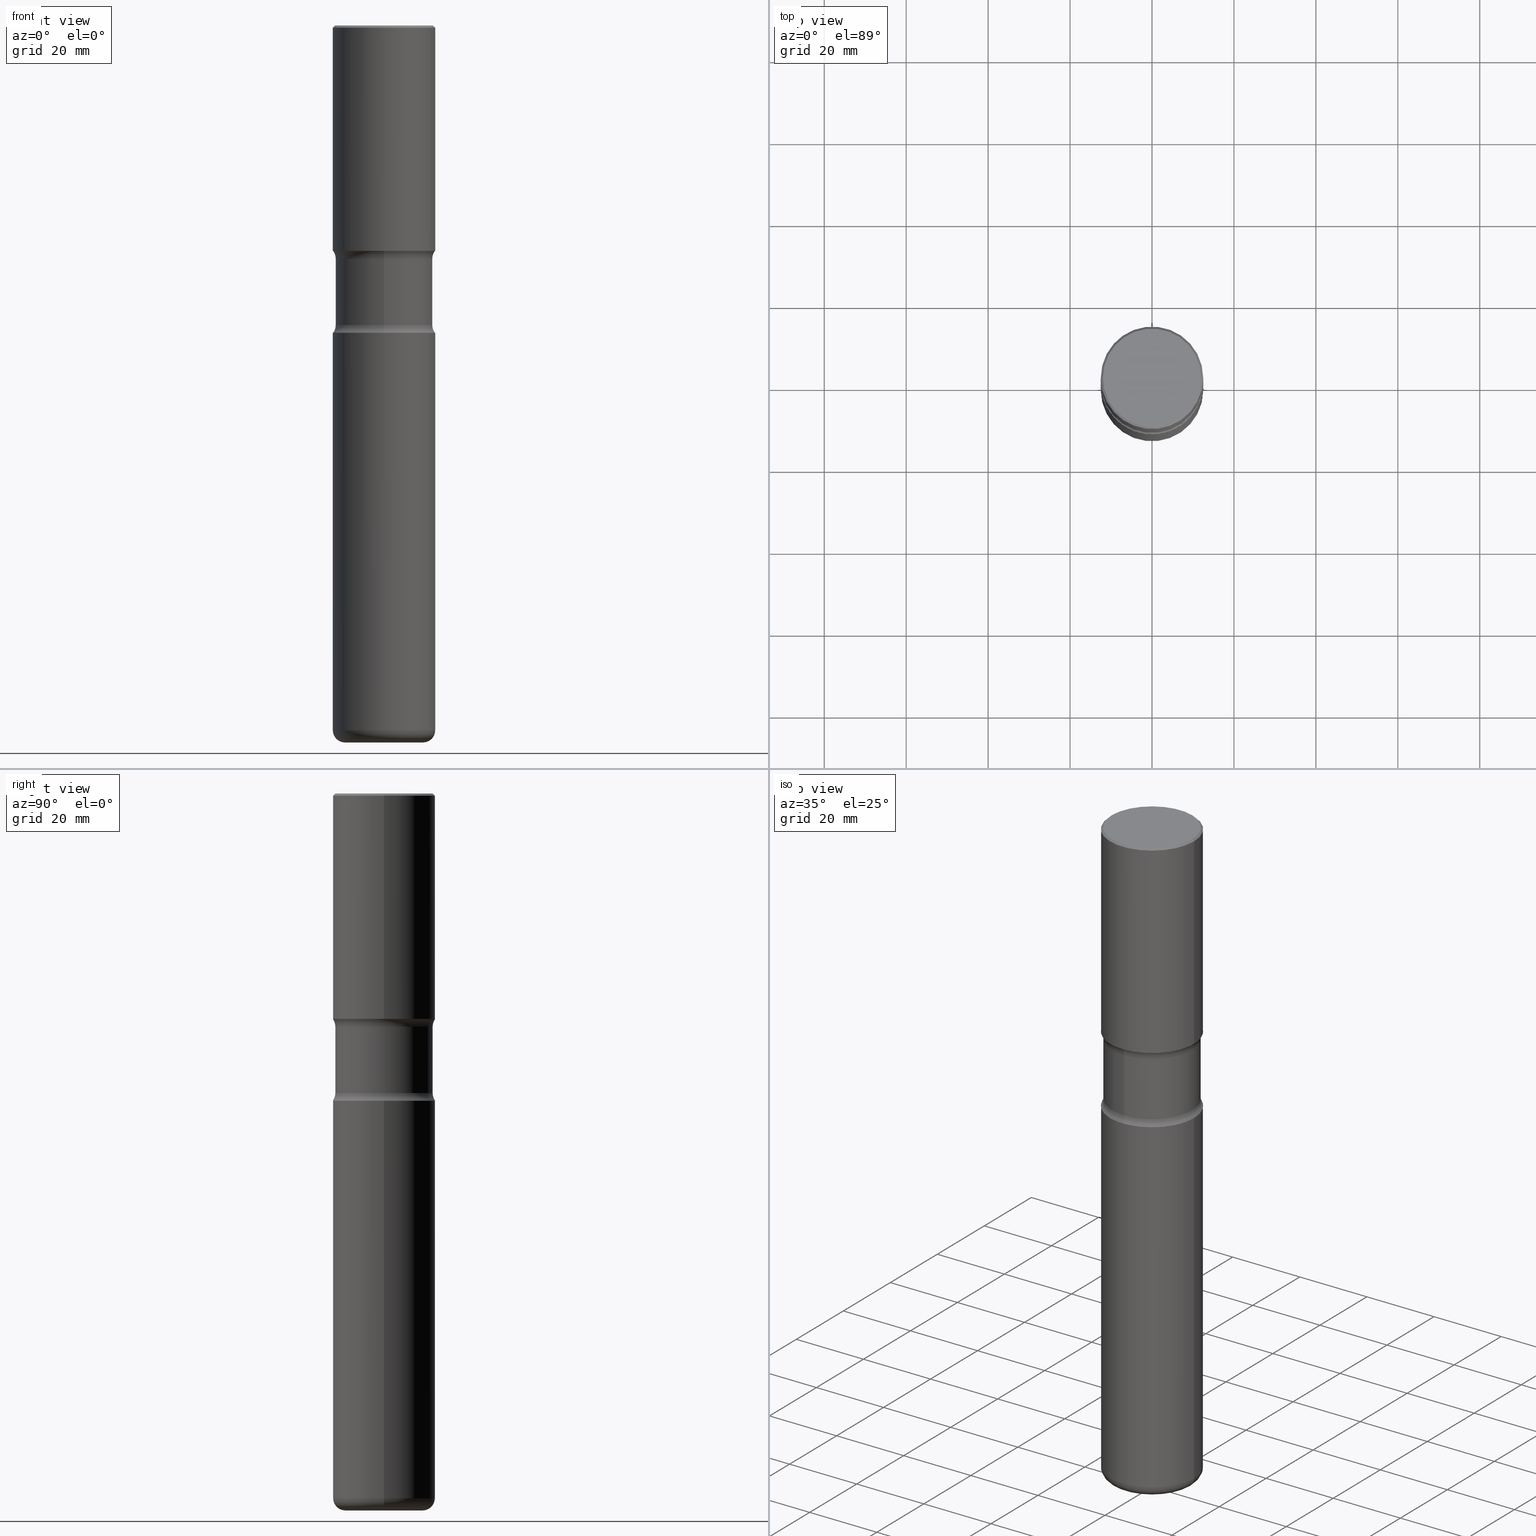
[diagram: canonical four-view strip — front | top / right | iso, engineering-drawing reading convention]
A machine part, canonical four-view strip (front | top / right | iso — engineering-drawing reading convention). The complete STEP part file that produces these views, byte-faithful:
ISO-10303-21;
HEADER;
FILE_DESCRIPTION (( 'STEP AP203' ),
    '1' );
FILE_NAME ('44766.STEP',
    '2024-03-02T02:59:02',
    ( '' ),
    ( '' ),
    'SwSTEP 2.0',
    'SolidWorks 2023',
    '' );
FILE_SCHEMA (( 'CONFIG_CONTROL_DESIGN' ));
ENDSEC;

DATA;
#1 = CARTESIAN_POINT ( 'NONE',  ( 1.656022566172450876E-28, -2.364361333037801448E-14, -6.771799999999999820 ) ) ;
#2 = EDGE_CURVE ( 'NONE', #377, #288, #232, .T. ) ;
#3 = DIRECTION ( 'NONE',  ( -2.445468806185136877E-29, 3.491481338843145188E-15, 1.000000000000000000 ) ) ;
#4 = CC_DESIGN_PERSON_AND_ORGANIZATION_ASSIGNMENT ( #112, #162, ( #527 ) ) ;
#5 = CARTESIAN_POINT ( 'NONE',  ( 5.295418152913296587E-29, -7.560453691130949000E-15, -2.165400000000000436 ) ) ;
#6 = DIRECTION ( 'NONE',  ( 1.000000000000000000, -6.982962677686264344E-15, 0.000000000000000000 ) ) ;
#7 = CIRCLE ( 'NONE', #465, 0.4921500000000002539 ) ;
#8 = DIRECTION ( 'NONE',  ( 6.860497997771532351E-15, 1.000000000000000000, 0.000000000000000000 ) ) ;
#9 = CARTESIAN_POINT ( 'NONE',  ( 0.000000000000000000, 0.000000000000000000, 0.000000000000000000 ) ) ;
#10 = ADVANCED_FACE ( 'NONE', ( #323 ), #143, .T. ) ;
#11 = EDGE_LOOP ( 'NONE', ( #376, #38 ) ) ;
#12 = DIRECTION ( 'NONE',  ( -2.445468806185136597E-29, 3.491481338843145583E-15, 1.000000000000000000 ) ) ;
#13 = DIRECTION ( 'NONE',  ( 1.000000000000000000, -6.982962677686266711E-15, 4.876176775795935232E-29 ) ) ;
#14 = CARTESIAN_POINT ( 'NONE',  ( -0.4921500000000004205, 3.366835455046435634E-15, -0.02000000000000013572 ) ) ;
#15 = DIRECTION ( 'NONE',  ( 2.481809406732894494E-29, -3.439439530480224420E-15, -1.000000000000000000 ) ) ;
#16 = ORIENTED_EDGE ( 'NONE', *, *, #177, .T. ) ;
#17 = DIRECTION ( 'NONE',  ( 1.000000000000000000, -6.860497997771530774E-15, 4.841436207964477879E-29 ) ) ;
#18 = CARTESIAN_POINT ( 'NONE',  ( 3.436665081823370324E-15, 0.4921499999999899844, -2.952800000000002090 ) ) ;
#19 = CARTESIAN_POINT ( 'NONE',  ( 5.295418152913296587E-29, -7.560453691130949000E-15, -2.165400000000000436 ) ) ;
#20 = ORIENTED_EDGE ( 'NONE', *, *, #523, .T. ) ;
#21 = CIRCLE ( 'NONE', #166, 0.4921500000000002539 ) ;
#22 = APPROVAL_PERSON_ORGANIZATION ( #456, #483, #71 ) ;
#23 = DIRECTION ( 'NONE',  ( 2.481809406732893933E-29, -3.439439530480224815E-15, -1.000000000000000000 ) ) ;
#24 = APPLICATION_CONTEXT ( 'configuration controlled 3d designs of mechanical parts and assemblies' ) ;
#25 = EDGE_LOOP ( 'NONE', ( #504, #20, #537, #525 ) ) ;
#26 = ADVANCED_FACE ( 'NONE', ( #281 ), #127, .T. ) ;
#27 = DATE_AND_TIME ( #347, #330 ) ;
#28 = DIRECTION ( 'NONE',  ( -2.445468806185136597E-29, 3.491481338843145583E-15, 1.000000000000000000 ) ) ;
#29 = CC_DESIGN_PERSON_AND_ORGANIZATION_ASSIGNMENT ( #467, #83, ( #272 ) ) ;
#30 = DIRECTION ( 'NONE',  ( 2.438088387897960049E-29, -3.491481338843145188E-15, -1.000000000000000000 ) ) ;
#31 =( CONVERSION_BASED_UNIT ( 'INCH', #551 ) LENGTH_UNIT ( ) NAMED_UNIT ( #150 ) );
#32 = ORIENTED_EDGE ( 'NONE', *, *, #300, .T. ) ;
#33 = CIRCLE ( 'NONE', #278, 0.1249999999999999584 ) ;
#34 = APPLICATION_PROTOCOL_DEFINITION ( 'international standard', 'config_control_design', 1994, #182 ) ;
#35 = EDGE_CURVE ( 'NONE', #390, #372, #318, .T. ) ;
#36 = EDGE_CURVE ( 'NONE', #201, #218, #362, .T. ) ;
#37 =( NAMED_UNIT ( * ) SI_UNIT ( $, .STERADIAN. ) SOLID_ANGLE_UNIT ( ) );
#38 = ORIENTED_EDGE ( 'NONE', *, *, #93, .F. ) ;
#39 = COORDINATED_UNIVERSAL_TIME_OFFSET ( 5, 0, .BEHIND. ) ;
#40 = ORIENTED_EDGE ( 'NONE', *, *, #489, .F. ) ;
#41 = VERTEX_POINT ( 'NONE', #160 ) ;
#42 = CLOSED_SHELL ( 'NONE', ( #481, #337, #431, #68, #534, #257, #199, #209 ) ) ;
#43 = CIRCLE ( 'NONE', #119, 0.4921500000000005870 ) ;
#44 = CYLINDRICAL_SURFACE ( 'NONE', #70, 0.4921500000000003094 ) ;
#45 = CC_DESIGN_APPROVAL ( #483, ( #272 ) ) ;
#46 = EDGE_CURVE ( 'NONE', #170, #391, #442, .T. ) ;
#47 = CARTESIAN_POINT ( 'NONE',  ( 4.137405386529183550E-15, 0.5924999999999900346, -2.878268949423749223 ) ) ;
#48 = DATE_AND_TIME ( #128, #54 ) ;
#49 = CARTESIAN_POINT ( 'NONE',  ( 3.264535051818384040E-15, 0.4674999999999921441, -2.239931050576255966 ) ) ;
#50 = FACE_OUTER_BOUND ( 'NONE', #25, .T. ) ;
#51 = AXIS2_PLACEMENT_3D ( 'NONE', #82, #63, #479 ) ;
#52 = ADVANCED_FACE ( 'NONE', ( #250 ), #122, .F. ) ;
#53 = ADVANCED_FACE ( 'NONE', ( #468 ), #84, .F. ) ;
#54 = LOCAL_TIME ( 21, 59, 2.000000000000000000, #253 ) ;
#55 = DIRECTION ( 'NONE',  ( 6.982962677686266711E-15, 1.000000000000000000, -3.439439530480224026E-15 ) ) ;
#56 = PRODUCT_DEFINITION ( 'UNKNOWN', '', #527, #454 ) ;
#57 = CARTESIAN_POINT ( 'NONE',  ( 7.220980290903472425E-29, -1.030964609733604011E-14, -2.952800000000000313 ) ) ;
#58 = ORIENTED_EDGE ( 'NONE', *, *, #518, .F. ) ;
#59 = EDGE_LOOP ( 'NONE', ( #124, #382, #485, #85 ) ) ;
#60 = DIRECTION ( 'NONE',  ( 6.982962677686265922E-15, 1.000000000000000000, -2.337410048054984397E-15 ) ) ;
#61 = AXIS2_PLACEMENT_3D ( 'NONE', #246, #415, #303 ) ;
#62 = AXIS2_PLACEMENT_3D ( 'NONE', #411, #324, #60 ) ;
#63 = DIRECTION ( 'NONE',  ( -1.000000000000000000, 6.982962677686265922E-15, -4.883557194083112340E-29 ) ) ;
#64 = DIRECTION ( 'NONE',  ( 2.481809406732894494E-29, -3.439439530480224420E-15, -1.000000000000000000 ) ) ;
#65 = DIRECTION ( 'NONE',  ( 6.982962677686265922E-15, 1.000000000000000000, -3.330506545156063496E-15 ) ) ;
#66 = PLANE ( 'NONE',  #370 ) ;
#67 = CARTESIAN_POINT ( 'NONE',  ( 5.295418152913296587E-29, -7.560453691130949000E-15, -2.165400000000000436 ) ) ;
#68 = ADVANCED_FACE ( 'NONE', ( #352 ), #222, .F. ) ;
#69 = AXIS2_PLACEMENT_3D ( 'NONE', #19, #541, #351 ) ;
#70 = AXIS2_PLACEMENT_3D ( 'NONE', #9, #239, #529 ) ;
#71 = APPROVAL_ROLE ( '' ) ;
#72 = ORIENTED_EDGE ( 'NONE', *, *, #109, .T. ) ;
#73 = ORIENTED_EDGE ( 'NONE', *, *, #386, .T. ) ;
#74 = APPLICATION_PROTOCOL_DEFINITION ( 'international standard', 'config_control_design', 1994, #24 ) ;
#75 = ORIENTED_EDGE ( 'NONE', *, *, #518, .T. ) ;
#76 = CARTESIAN_POINT ( 'NONE',  ( 0.000000000000000000, 0.000000000000000000, 0.000000000000000000 ) ) ;
#77 = ORIENTED_EDGE ( 'NONE', *, *, #266, .F. ) ;
#78 = DIRECTION ( 'NONE',  ( 2.481809406732894494E-29, -3.439439530480224420E-15, -1.000000000000000000 ) ) ;
#79 = ORIENTED_EDGE ( 'NONE', *, *, #185, .T. ) ;
#80 = AXIS2_PLACEMENT_3D ( 'NONE', #335, #107, #287 ) ;
#81 = APPROVAL_DATE_TIME ( #544, #327 ) ;
#82 = CARTESIAN_POINT ( 'NONE',  ( 4.137405386529168562E-15, 0.5924999999999922551, -2.239931050576256411 ) ) ;
#83 = PERSON_AND_ORGANIZATION_ROLE ( 'classification_officer' ) ;
#84 = PLANE ( 'NONE',  #385 ) ;
#85 = ORIENTED_EDGE ( 'NONE', *, *, #46, .T. ) ;
#86 = DIRECTION ( 'NONE',  ( -1.000000000000000000, 6.982962677686267499E-15, 0.000000000000000000 ) ) ;
#87 = EDGE_CURVE ( 'NONE', #333, #41, #105, .T. ) ;
#88 = ADVANCED_FACE ( 'NONE', ( #552 ), #556, .T. ) ;
#89 = SHAPE_DEFINITION_REPRESENTATION ( #472, #274 ) ;
#90 = ORGANIZATION ( 'UNSPECIFIED', 'UNSPECIFIED', '' ) ;
#91 = DIRECTION ( 'NONE',  ( 2.481809406732894494E-29, -3.439439530480224420E-15, -1.000000000000000000 ) ) ;
#92 = DIRECTION ( 'NONE',  ( -6.982962677686265133E-15, -1.000000000000000000, 0.000000000000000000 ) ) ;
#93 = EDGE_CURVE ( 'NONE', #218, #201, #421, .T. ) ;
#94 = CARTESIAN_POINT ( 'NONE',  ( 0.4921500000000005315, -3.436665081823299721E-15, 2.399810400207972125E-29 ) ) ;
#95 = CARTESIAN_POINT ( 'NONE',  ( 4.890937612370306439E-31, -6.982962677686338448E-17, -0.02000000000000013572 ) ) ;
#96 = AXIS2_PLACEMENT_3D ( 'NONE', #225, #334, #267 ) ;
#97 = CARTESIAN_POINT ( 'NONE',  ( 0.000000000000000000, 0.000000000000000000, 0.000000000000000000 ) ) ;
#98 = DIRECTION ( 'NONE',  ( 2.481809406732894494E-29, -3.439439530480224420E-15, -1.000000000000000000 ) ) ;
#99 = CARTESIAN_POINT ( 'NONE',  ( 7.036008428489641815E-29, -1.005330105573585586E-14, -2.878268949423747003 ) ) ;
#100 = CYLINDRICAL_SURFACE ( 'NONE', #96, 0.4675000000000000266 ) ;
#101 = ORIENTED_EDGE ( 'NONE', *, *, #2, .T. ) ;
#102 = EDGE_CURVE ( 'NONE', #401, #497, #141, .T. ) ;
#103 = CARTESIAN_POINT ( 'NONE',  ( 7.036008428489641815E-29, -1.005330105573585586E-14, -2.878268949423747003 ) ) ;
#104 = VERTEX_POINT ( 'NONE', #123 ) ;
#105 = CIRCLE ( 'NONE', #392, 0.4921500000000003650 ) ;
#106 = APPROVAL_PERSON_ORGANIZATION ( #265, #305, #419 ) ;
#107 = DIRECTION ( 'NONE',  ( 2.481809406732894494E-29, -3.439439530480224420E-15, -1.000000000000000000 ) ) ;
#108 = EDGE_CURVE ( 'NONE', #497, #333, #346, .T. ) ;
#109 = EDGE_CURVE ( 'NONE', #221, #401, #538, .T. ) ;
#110 = EDGE_LOOP ( 'NONE', ( #75, #461, #498, #113 ) ) ;
#111 = VERTEX_POINT ( 'NONE', #195 ) ;
#112 = PERSON_AND_ORGANIZATION ( #260, #90 ) ;
#113 = ORIENTED_EDGE ( 'NONE', *, *, #2, .F. ) ;
#114 = CC_DESIGN_DATE_AND_TIME_ASSIGNMENT ( #462, #207, ( #56 ) ) ;
#115 = ORIENTED_EDGE ( 'NONE', *, *, #36, .T. ) ;
#116 = VECTOR ( 'NONE', #148, 39.37007874015748143 ) ;
#117 = ORIENTED_EDGE ( 'NONE', *, *, #108, .F. ) ;
#118 = CLOSED_SHELL ( 'NONE', ( #414, #448, #528, #449, #88, #156 ) ) ;
#119 = AXIS2_PLACEMENT_3D ( 'NONE', #546, #459, #298 ) ;
#120 =( NAMED_UNIT ( * ) PLANE_ANGLE_UNIT ( ) SI_UNIT ( $, .RADIAN. ) );
#121 = EDGE_LOOP ( 'NONE', ( #163, #409, #240, #211 ) ) ;
#122 = PLANE ( 'NONE',  #69 ) ;
#123 = CARTESIAN_POINT ( 'NONE',  ( -3.291838451780672198E-15, -0.4675000000000078537, -2.239931050576252414 ) ) ;
#124 = ORIENTED_EDGE ( 'NONE', *, *, #244, .F. ) ;
#125 = AXIS2_PLACEMENT_3D ( 'NONE', #345, #78, #65 ) ;
#126 = PERSON_AND_ORGANIZATION_ROLE ( 'design_supplier' ) ;
#127 = CYLINDRICAL_SURFACE ( 'NONE', #61, 0.4921500000000005315 ) ;
#128 = CALENDAR_DATE ( 2024, 1, 3 ) ;
#129 = DIRECTION ( 'NONE',  ( -0.7071067811865472397, 2.468850131082253905E-15, -0.7071067811865477948 ) ) ;
#130 = DIRECTION ( 'NONE',  ( -2.445468806185136597E-29, 3.491481338843145583E-15, 1.000000000000000000 ) ) ;
#131 = DIRECTION ( 'NONE',  ( -1.000000000000000000, 6.982962677686265922E-15, -4.876176775795935793E-29 ) ) ;
#132 = AXIS2_PLACEMENT_3D ( 'NONE', #438, #91, #432 ) ;
#133 = AXIS2_PLACEMENT_3D ( 'NONE', #57, #15, #484 ) ;
#134 = PLANE ( 'NONE',  #188 ) ;
#135 = DIRECTION ( 'NONE',  ( 6.982962677686265922E-15, 1.000000000000000000, -3.330506545156063496E-15 ) ) ;
#136 = APPROVAL_DATE_TIME ( #48, #483 ) ;
#137 = CARTESIAN_POINT ( 'NONE',  ( -0.4921500000000003094, -2.014667725633467764E-14, -6.771799999999999820 ) ) ;
#138 = MANIFOLD_SOLID_BREP ( 'Body-Move/Copy2[1]', #118 ) ;
#139 = DIRECTION ( 'NONE',  ( 0.7071067811865472397, -7.319954787623254468E-15, -0.7071067811865477948 ) ) ;
#140 = CARTESIAN_POINT ( 'NONE',  ( 3.297005828269572336E-15, 0.4721500000000002917, -1.644234401644691855E-15 ) ) ;
#141 = CIRCLE ( 'NONE', #309, 0.1180000000000000770 ) ;
#142 = CC_DESIGN_APPROVAL ( #305, ( #56 ) ) ;
#143 = CYLINDRICAL_SURFACE ( 'NONE', #237, 0.4921500000000005315 ) ;
#144 = FACE_OUTER_BOUND ( 'NONE', #121, .T. ) ;
#145 = MANIFOLD_SOLID_BREP ( 'Body-Move/Copy2[4]', #42 ) ;
#146 = DIRECTION ( 'NONE',  ( -1.000000000000000000, 6.982962677686265922E-15, -4.876176775795935793E-29 ) ) ;
#147 = ORIENTED_EDGE ( 'NONE', *, *, #244, .T. ) ;
#148 = DIRECTION ( 'NONE',  ( 2.481809406732894774E-29, -3.439439530480224815E-15, -1.000000000000000000 ) ) ;
#149 = CC_DESIGN_PERSON_AND_ORGANIZATION_ASSIGNMENT ( #297, #424, ( #56 ) ) ;
#150 = DIMENSIONAL_EXPONENTS ( 1.000000000000000000, 0.000000000000000000, 0.000000000000000000, 0.000000000000000000, 0.000000000000000000, 0.000000000000000000, 0.000000000000000000 ) ;
#151 = DIRECTION ( 'NONE',  ( 2.438088387897960049E-29, -3.491481338843145188E-15, -1.000000000000000000 ) ) ;
#152 = ORIENTED_EDGE ( 'NONE', *, *, #365, .T. ) ;
#153 = CONICAL_SURFACE ( 'NONE', #238, 0.4921500000000004205, 0.7853981633974479459 ) ;
#154 = AXIS2_PLACEMENT_3D ( 'NONE', #197, #290, #248 ) ;
#155 = EDGE_CURVE ( 'NONE', #104, #218, #477, .T. ) ;
#156 = ADVANCED_FACE ( 'NONE', ( #531 ), #441, .F. ) ;
#157 = DIRECTION ( 'NONE',  ( 1.000000000000000000, -6.982962677686264344E-15, 0.000000000000000000 ) ) ;
#158 = ORIENTED_EDGE ( 'NONE', *, *, #245, .T. ) ;
#159 = ORIENTED_EDGE ( 'NONE', *, *, #210, .T. ) ;
#160 = CARTESIAN_POINT ( 'NONE',  ( -0.4921500000000004205, -1.347969363981368966E-14, -2.952800000000000313 ) ) ;
#161 = EDGE_LOOP ( 'NONE', ( #509, #72, #412, #515 ) ) ;
#162 = PERSON_AND_ORGANIZATION_ROLE ( 'creator' ) ;
#163 = ORIENTED_EDGE ( 'NONE', *, *, #523, .F. ) ;
#164 = ORIENTED_EDGE ( 'NONE', *, *, #365, .F. ) ;
#165 = DIRECTION ( 'NONE',  ( -6.982962677686266711E-15, -1.000000000000000000, 3.491481338843145583E-15 ) ) ;
#166 = AXIS2_PLACEMENT_3D ( 'NONE', #1, #517, #395 ) ;
#167 = DIRECTION ( 'NONE',  ( 1.000000000000000000, -6.982962677686267499E-15, 4.876006802227156250E-29 ) ) ;
#168 = DIRECTION ( 'NONE',  ( 0.000000000000000000, 0.000000000000000000, 1.000000000000000000 ) ) ;
#169 = CALENDAR_DATE ( 2024, 1, 3 ) ;
#170 = VERTEX_POINT ( 'NONE', #14 ) ;
#171 = AXIS2_PLACEMENT_3D ( 'NONE', #316, #12, #6 ) ;
#172 = EDGE_CURVE ( 'NONE', #359, #111, #43, .T. ) ;
#173 = EDGE_LOOP ( 'NONE', ( #73, #16, #493, #117 ) ) ;
#174 = CARTESIAN_POINT ( 'NONE',  ( -3.376394089603208169E-15, -0.4921500000000079145, -2.165399999999999103 ) ) ;
#175 = CARTESIAN_POINT ( 'NONE',  ( -0.4921500000000004205, 3.366835455046435634E-15, -0.02000000000000013572 ) ) ;
#176 = DIRECTION ( 'NONE',  ( 2.481809406732894494E-29, -3.439439530480224420E-15, -1.000000000000000000 ) ) ;
#177 = EDGE_CURVE ( 'NONE', #404, #41, #510, .T. ) ;
#178 = VECTOR ( 'NONE', #312, 39.37007874015748143 ) ;
#179 = AXIS2_PLACEMENT_3D ( 'NONE', #375, #445, #291 ) ;
#180 = CARTESIAN_POINT ( 'NONE',  ( 7.038716931627038310E-29, -1.004942232508467898E-14, -2.878268949423747003 ) ) ;
#181 = CARTESIAN_POINT ( 'NONE',  ( 0.4921500000000004205, -3.446223716380125899E-15, -0.02000000000000013572 ) ) ;
#182 = APPLICATION_CONTEXT ( 'configuration controlled 3d designs of mechanical parts and assemblies' ) ;
#183 = CARTESIAN_POINT ( 'NONE',  ( 4.890937612370306439E-31, -6.982962677686338448E-17, -0.02000000000000013572 ) ) ;
#184 = FACE_OUTER_BOUND ( 'NONE', #173, .T. ) ;
#185 = EDGE_CURVE ( 'NONE', #377, #201, #378, .T. ) ;
#186 = ADVANCED_FACE ( 'NONE', ( #235 ), #487, .T. ) ;
#187 = DIRECTION ( 'NONE',  ( 6.982962677686266711E-15, 1.000000000000000000, -3.439439530480224026E-15 ) ) ;
#188 = AXIS2_PLACEMENT_3D ( 'NONE', #308, #396, #473 ) ;
#189 = DIRECTION ( 'NONE',  ( 1.000000000000000000, -6.982962677686268288E-15, 4.883557194083113462E-29 ) ) ;
#190 = VECTOR ( 'NONE', #139, 39.37007874015748143 ) ;
#191 = ORIENTED_EDGE ( 'NONE', *, *, #35, .T. ) ;
#192 = CC_DESIGN_SECURITY_CLASSIFICATION ( #272, ( #527 ) ) ;
#193 = DIRECTION ( 'NONE',  ( 2.481809406732894494E-29, -3.439439530480224420E-15, -1.000000000000000000 ) ) ;
#194 = ORIENTED_EDGE ( 'NONE', *, *, #300, .F. ) ;
#195 = CARTESIAN_POINT ( 'NONE',  ( 0.4921500000000005870, -1.099711877295425109E-14, -2.165400000000000436 ) ) ;
#196 = CARTESIAN_POINT ( 'NONE',  ( 7.220980290903472425E-29, -1.030964609733604011E-14, -2.952800000000000313 ) ) ;
#197 = CARTESIAN_POINT ( 'NONE',  ( -0.3741500000000003157, -2.098511768453159818E-14, -6.771799999999999820 ) ) ;
#198 = ORIENTED_EDGE ( 'NONE', *, *, #545, .T. ) ;
#199 = ADVANCED_FACE ( 'NONE', ( #144 ), #302, .F. ) ;
#200 = FACE_OUTER_BOUND ( 'NONE', #11, .T. ) ;
#201 = VERTEX_POINT ( 'NONE', #277 ) ;
#202 = AXIS2_PLACEMENT_3D ( 'NONE', #471, #557, #276 ) ;
#203 = AXIS2_PLACEMENT_3D ( 'NONE', #532, #539, #157 ) ;
#204 = EDGE_LOOP ( 'NONE', ( #254, #32 ) ) ;
#205 = DIRECTION ( 'NONE',  ( 6.982962677686265133E-15, 1.000000000000000000, -3.439439530480224026E-15 ) ) ;
#206 = EDGE_LOOP ( 'NONE', ( #296, #158, #295, #549 ) ) ;
#207 = DATE_TIME_ROLE ( 'creation_date' ) ;
#208 = ORIENTED_EDGE ( 'NONE', *, *, #469, .F. ) ;
#209 = ADVANCED_FACE ( 'NONE', ( #474 ), #100, .T. ) ;
#210 = EDGE_CURVE ( 'NONE', #404, #497, #21, .T. ) ;
#211 = ORIENTED_EDGE ( 'NONE', *, *, #550, .T. ) ;
#212 = VECTOR ( 'NONE', #367, 39.37007874015748143 ) ;
#213 = AXIS2_PLACEMENT_3D ( 'NONE', #99, #282, #439 ) ;
#214 = MECHANICAL_CONTEXT ( 'NONE', #182, 'mechanical' ) ;
#215 = DIRECTION ( 'NONE',  ( 2.481809406732894494E-29, -3.439439530480224420E-15, -1.000000000000000000 ) ) ;
#216 = ORIENTED_EDGE ( 'NONE', *, *, #155, .F. ) ;
#217 = PERSON_AND_ORGANIZATION ( #260, #90 ) ;
#218 = VERTEX_POINT ( 'NONE', #174 ) ;
#219 = EDGE_CURVE ( 'NONE', #530, #288, #33, .T. ) ;
#220 = APPROVAL_STATUS ( 'not_yet_approved' ) ;
#221 = VERTEX_POINT ( 'NONE', #358 ) ;
#222 = TOROIDAL_SURFACE ( 'NONE', #416, 0.5925000000000001377, 0.1250000000000002498 ) ;
#223 = AXIS2_PLACEMENT_3D ( 'NONE', #76, #168, #261 ) ;
#224 = CARTESIAN_POINT ( 'NONE',  ( 1.656022566172450876E-28, -2.364361333037801448E-14, -6.771799999999999820 ) ) ;
#225 = CARTESIAN_POINT ( 'NONE',  ( 1.699186392521087599E-28, -2.385071952883668462E-14, -6.889800000000000146 ) ) ;
#226 = DIRECTION ( 'NONE',  ( -2.445468806185136877E-29, 3.491481338843145188E-15, 1.000000000000000000 ) ) ;
#227 = DIRECTION ( 'NONE',  ( 2.445468806185136597E-29, -3.491481338843145583E-15, -1.000000000000000000 ) ) ;
#228 = CARTESIAN_POINT ( 'NONE',  ( 0.000000000000000000, 0.000000000000000000, 0.000000000000000000 ) ) ;
#229 = AXIS2_PLACEMENT_3D ( 'NONE', #433, #176, #135 ) ;
#230 = CC_DESIGN_APPROVAL ( #327, ( #527 ) ) ;
#231 = LINE ( 'NONE', #94, #500 ) ;
#232 = LINE ( 'NONE', #402, #116 ) ;
#233 = DIRECTION ( 'NONE',  ( 1.000000000000000000, -6.982962677686267499E-15, 0.000000000000000000 ) ) ;
#234 = DIRECTION ( 'NONE',  ( -1.000000000000000000, 6.982962677686267499E-15, 0.000000000000000000 ) ) ;
#235 = FACE_OUTER_BOUND ( 'NONE', #59, .T. ) ;
#236 = DIRECTION ( 'NONE',  ( -2.445468806185136597E-29, 3.491481338843145583E-15, 1.000000000000000000 ) ) ;
#237 = AXIS2_PLACEMENT_3D ( 'NONE', #97, #241, #13 ) ;
#238 = AXIS2_PLACEMENT_3D ( 'NONE', #476, #227, #86 ) ;
#239 = DIRECTION ( 'NONE',  ( -2.445468806185136597E-29, 3.491481338843145583E-15, 1.000000000000000000 ) ) ;
#240 = ORIENTED_EDGE ( 'NONE', *, *, #219, .T. ) ;
#241 = DIRECTION ( 'NONE',  ( -2.445468806185136597E-29, 3.491481338843145583E-15, 1.000000000000000000 ) ) ;
#242 = EDGE_LOOP ( 'NONE', ( #446, #147, #540, #77 ) ) ;
#243 = CARTESIAN_POINT ( 'NONE',  ( 0.4921500000000003094, -2.708027841220131499E-14, -6.771799999999999820 ) ) ;
#244 = EDGE_CURVE ( 'NONE', #372, #391, #403, .T. ) ;
#245 = EDGE_CURVE ( 'NONE', #359, #170, #366, .T. ) ;
#246 = CARTESIAN_POINT ( 'NONE',  ( 0.000000000000000000, 0.000000000000000000, 0.000000000000000000 ) ) ;
#247 = ORIENTED_EDGE ( 'NONE', *, *, #102, .F. ) ;
#248 = DIRECTION ( 'NONE',  ( -1.000000000000000000, 7.105427357601009747E-15, 0.000000000000000000 ) ) ;
#249 = EDGE_LOOP ( 'NONE', ( #40, #256 ) ) ;
#250 = FACE_OUTER_BOUND ( 'NONE', #317, .T. ) ;
#251 = DIRECTION ( 'NONE',  ( -2.445468806185136597E-29, 3.491481338843145583E-15, 1.000000000000000000 ) ) ;
#252 = TOROIDAL_SURFACE ( 'NONE', #264, 0.3741500000000003157, 0.1180000000000000770 ) ;
#253 = COORDINATED_UNIVERSAL_TIME_OFFSET ( 5, 0, .BEHIND. ) ;
#254 = ORIENTED_EDGE ( 'NONE', *, *, #87, .T. ) ;
#255 = DIRECTION ( 'NONE',  ( -2.445468806185136597E-29, 3.491481338843145583E-15, 1.000000000000000000 ) ) ;
#256 = ORIENTED_EDGE ( 'NONE', *, *, #109, .F. ) ;
#257 = ADVANCED_FACE ( 'NONE', ( #519 ), #134, .F. ) ;
#258 = PERSON_AND_ORGANIZATION ( #260, #90 ) ;
#259 = ORIENTED_EDGE ( 'NONE', *, *, #155, .T. ) ;
#260 = PERSON ( 'UNSPECIFIED', 'UNSPECIFIED', 'UNSPECIFIED', ('UNSPECIFIED'), ('UNSPECIFIED'), ('UNSPECIFIED') ) ;
#261 = DIRECTION ( 'NONE',  ( 1.000000000000000000, 0.000000000000000000, 0.000000000000000000 ) ) ;
#262 = CARTESIAN_POINT ( 'NONE',  ( 0.3741500000000003157, -2.625628881623433059E-14, -6.771799999999999820 ) ) ;
#263 = VECTOR ( 'NONE', #129, 39.37007874015748143 ) ;
#264 = AXIS2_PLACEMENT_3D ( 'NONE', #371, #236, #189 ) ;
#265 = PERSON_AND_ORGANIZATION ( #260, #90 ) ;
#266 = EDGE_CURVE ( 'NONE', #390, #170, #522, .T. ) ;
#267 = DIRECTION ( 'NONE',  ( 6.982962677686265922E-15, 1.000000000000000000, -2.337410048054984397E-15 ) ) ;
#268 = COORDINATED_UNIVERSAL_TIME_OFFSET ( 5, 0, .BEHIND. ) ;
#269 = CARTESIAN_POINT ( 'NONE',  ( 7.038716931627038310E-29, -1.004942232508467898E-14, -2.878268949423747003 ) ) ;
#270 = LINE ( 'NONE', #470, #212 ) ;
#271 = CIRCLE ( 'NONE', #132, 0.4675000000000000266 ) ;
#272 = SECURITY_CLASSIFICATION ( '', '', #304 ) ;
#273 = CARTESIAN_POINT ( 'NONE',  ( 3.264535051818399817E-15, 0.4674999999999899791, -2.878268949423748779 ) ) ;
#274 = ADVANCED_BREP_SHAPE_REPRESENTATION ( '44766', ( #138, #344, #145, #223 ), #503 ) ;
#275 = CARTESIAN_POINT ( 'NONE',  ( -3.376394089603189631E-15, -0.4921500000000106345, -2.952799999999998537 ) ) ;
#276 = DIRECTION ( 'NONE',  ( 1.000000000000000000, -6.982962677686265133E-15, 0.000000000000000000 ) ) ;
#277 = CARTESIAN_POINT ( 'NONE',  ( 3.436665081823350997E-15, 0.4921499999999927044, -2.165400000000002656 ) ) ;
#278 = AXIS2_PLACEMENT_3D ( 'NONE', #47, #364, #92 ) ;
#279 = AXIS2_PLACEMENT_3D ( 'NONE', #5, #251, #417 ) ;
#280 = DIRECTION ( 'NONE',  ( -2.445468806185136597E-29, 3.491481338843145583E-15, 1.000000000000000000 ) ) ;
#281 = FACE_OUTER_BOUND ( 'NONE', #425, .T. ) ;
#282 = DIRECTION ( 'NONE',  ( 2.481809406732894494E-29, -3.439439530480224420E-15, -1.000000000000000000 ) ) ;
#283 = CARTESIAN_POINT ( 'NONE',  ( 1.656022566172450876E-28, -2.364361333037801448E-14, -6.771799999999999820 ) ) ;
#284 = ORIENTED_EDGE ( 'NONE', *, *, #506, .T. ) ;
#285 = EDGE_CURVE ( 'NONE', #111, #391, #231, .T. ) ;
#286 = EDGE_CURVE ( 'NONE', #104, #435, #270, .T. ) ;
#287 = DIRECTION ( 'NONE',  ( 6.982962677686265922E-15, 1.000000000000000000, -3.506115072082476793E-15 ) ) ;
#288 = VERTEX_POINT ( 'NONE', #273 ) ;
#289 = PRODUCT_RELATED_PRODUCT_CATEGORY ( 'detail', '', ( #452 ) ) ;
#290 = DIRECTION ( 'NONE',  ( 7.105427357601001859E-15, 1.000000000000000000, -3.491481338843145583E-15 ) ) ;
#291 = DIRECTION ( 'NONE',  ( 6.860497997771528407E-15, 1.000000000000000000, 0.000000000000000000 ) ) ;
#292 = ORIENTED_EDGE ( 'NONE', *, *, #286, .F. ) ;
#293 = AXIS2_PLACEMENT_3D ( 'NONE', #196, #535, #410 ) ;
#294 = ORIENTED_EDGE ( 'NONE', *, *, #172, .F. ) ;
#295 = ORIENTED_EDGE ( 'NONE', *, *, #407, .F. ) ;
#296 = ORIENTED_EDGE ( 'NONE', *, *, #469, .T. ) ;
#297 = PERSON_AND_ORGANIZATION ( #260, #90 ) ;
#298 = DIRECTION ( 'NONE',  ( 1.000000000000000000, -6.982962677686267499E-15, 0.000000000000000000 ) ) ;
#299 = UNCERTAINTY_MEASURE_WITH_UNIT (LENGTH_MEASURE( 1.000000000000000082E-05 ), #31, 'distance_accuracy_value', 'NONE');
#300 = EDGE_CURVE ( 'NONE', #41, #333, #341, .T. ) ;
#301 = DIRECTION ( 'NONE',  ( 1.000000000000000000, -6.982962677686265133E-15, 0.000000000000000000 ) ) ;
#302 = TOROIDAL_SURFACE ( 'NONE', #369, 0.5925000000000000266, 0.1249999999999999306 ) ;
#303 = DIRECTION ( 'NONE',  ( 1.000000000000000000, -6.982962677686266711E-15, 4.876176775795935232E-29 ) ) ;
#304 = SECURITY_CLASSIFICATION_LEVEL ( 'unclassified' ) ;
#305 = APPROVAL ( #389, 'UNSPECIFIED' ) ;
#306 = VERTEX_POINT ( 'NONE', #275 ) ;
#307 = DIRECTION ( 'NONE',  ( 2.481809406732894494E-29, -3.439439530480224420E-15, -1.000000000000000000 ) ) ;
#308 = CARTESIAN_POINT ( 'NONE',  ( 7.220980290903472425E-29, -1.030964609733604011E-14, -2.952800000000000313 ) ) ;
#309 = AXIS2_PLACEMENT_3D ( 'NONE', #262, #165, #505 ) ;
#310 = AXIS2_PLACEMENT_3D ( 'NONE', #283, #320, #440 ) ;
#311 = CARTESIAN_POINT ( 'NONE',  ( -2.087702828670439639E-46, 2.980686340760894400E-32, 8.537024980200822558E-18 ) ) ;
#312 = DIRECTION ( 'NONE',  ( -2.445468806185136877E-29, 3.491481338843145188E-15, 1.000000000000000000 ) ) ;
#313 = CC_DESIGN_DATE_AND_TIME_ASSIGNMENT ( #426, #502, ( #272 ) ) ;
#314 = CARTESIAN_POINT ( 'NONE',  ( 0.4921500000000003650, -1.374631117915933746E-14, -2.952800000000000313 ) ) ;
#315 = DIRECTION ( 'NONE',  ( 1.000000000000000000, -6.982962677686270655E-15, 0.000000000000000000 ) ) ;
#316 = CARTESIAN_POINT ( 'NONE',  ( 1.684879098085435385E-28, -2.405560812836150510E-14, -6.889800000000000146 ) ) ;
#317 = EDGE_LOOP ( 'NONE', ( #208, #294 ) ) ;
#318 = CIRCLE ( 'NONE', #526, 0.4721500000000002917 ) ;
#319 = AXIS2_PLACEMENT_3D ( 'NONE', #408, #193, #205 ) ;
#320 = DIRECTION ( 'NONE',  ( -2.445468806185136597E-29, 3.491481338843145583E-15, 1.000000000000000000 ) ) ;
#321 = CARTESIAN_POINT ( 'NONE',  ( -3.291838451780654843E-15, -0.4675000000000100187, -2.878268949423745227 ) ) ;
#322 = EDGE_CURVE ( 'NONE', #372, #390, #513, .T. ) ;
#323 = FACE_OUTER_BOUND ( 'NONE', #206, .T. ) ;
#324 = DIRECTION ( 'NONE',  ( 2.481809406732894494E-29, -3.439439530480224420E-15, -1.000000000000000000 ) ) ;
#325 = EDGE_LOOP ( 'NONE', ( #164, #259, #533, #543 ) ) ;
#326 = CARTESIAN_POINT ( 'NONE',  ( -4.064845063679578461E-15, -0.5925000000000081313, -2.239931050576252414 ) ) ;
#327 = APPROVAL ( #220, 'UNSPECIFIED' ) ;
#328 = CLOSED_SHELL ( 'NONE', ( #10, #394, #186, #53, #52, #26 ) ) ;
#329 = VECTOR ( 'NONE', #418, 39.37007874015748143 ) ;
#330 = LOCAL_TIME ( 21, 59, 2.000000000000000000, #39 ) ;
#331 = ORIENTED_EDGE ( 'NONE', *, *, #245, .F. ) ;
#332 = CARTESIAN_POINT ( 'NONE',  ( 4.890937612370306439E-31, -6.982962677686338448E-17, -0.02000000000000013572 ) ) ;
#333 = VERTEX_POINT ( 'NONE', #314 ) ;
#334 = DIRECTION ( 'NONE',  ( 2.481809406732894494E-29, -3.439439530480224420E-15, -1.000000000000000000 ) ) ;
#335 = CARTESIAN_POINT ( 'NONE',  ( 5.451775426455823667E-29, -7.857776452636100502E-15, -2.239931050576254190 ) ) ;
#336 = ORIENTED_EDGE ( 'NONE', *, *, #488, .F. ) ;
#337 = ADVANCED_FACE ( 'NONE', ( #50 ), #455, .F. ) ;
#338 = EDGE_LOOP ( 'NONE', ( #339, #198 ) ) ;
#339 = ORIENTED_EDGE ( 'NONE', *, *, #511, .T. ) ;
#340 = APPROVAL_STATUS ( 'not_yet_approved' ) ;
#341 = CIRCLE ( 'NONE', #202, 0.4921500000000003650 ) ;
#342 = CC_DESIGN_PERSON_AND_ORGANIZATION_ASSIGNMENT ( #217, #126, ( #527 ) ) ;
#343 = LOCAL_TIME ( 21, 59, 2.000000000000000000, #268 ) ;
#344 = MANIFOLD_SOLID_BREP ( 'Body-Move/Copy2[2]', #328 ) ;
#345 = CARTESIAN_POINT ( 'NONE',  ( 5.266803564041991936E-29, -7.601431411035914674E-15, -2.165400000000000880 ) ) ;
#346 = LINE ( 'NONE', #507, #178 ) ;
#347 = CALENDAR_DATE ( 2024, 1, 3 ) ;
#348 = APPROVAL_ROLE ( '' ) ;
#349 = DIRECTION ( 'NONE',  ( 6.982962677686265133E-15, 1.000000000000000000, -3.439439530480224026E-15 ) ) ;
#350 = CARTESIAN_POINT ( 'NONE',  ( -0.4921500000000003094, 3.496936074043335263E-15, -2.420853904668953471E-29 ) ) ;
#351 = DIRECTION ( 'NONE',  ( 1.000000000000000000, -6.982962677686265922E-15, 4.876176775795935793E-29 ) ) ;
#352 = FACE_OUTER_BOUND ( 'NONE', #384, .T. ) ;
#353 = COORDINATED_UNIVERSAL_TIME_OFFSET ( 5, 0, .BEHIND. ) ;
#354 = ORIENTED_EDGE ( 'NONE', *, *, #172, .T. ) ;
#355 = AXIS2_PLACEMENT_3D ( 'NONE', #311, #559, #360 ) ;
#356 = CIRCLE ( 'NONE', #179, 0.1249999999999999584 ) ;
#357 = CARTESIAN_POINT ( 'NONE',  ( 5.429990530737558152E-29, -7.888973663223921688E-15, -2.239931050576254634 ) ) ;
#358 = CARTESIAN_POINT ( 'NONE',  ( -0.3741500000000003157, -2.077189486942488637E-14, -6.889800000000000146 ) ) ;
#359 = VERTEX_POINT ( 'NONE', #555 ) ;
#360 = DIRECTION ( 'NONE',  ( 1.000000000000000000, -6.982962677686267499E-15, 4.876006802227156250E-29 ) ) ;
#361 = ORIENTED_EDGE ( 'NONE', *, *, #285, .T. ) ;
#362 = CIRCLE ( 'NONE', #125, 0.4921500000000003650 ) ;
#363 = CIRCLE ( 'NONE', #387, 0.4675000000000000266 ) ;
#364 = DIRECTION ( 'NONE',  ( -1.000000000000000000, 6.982962677686265922E-15, -4.883557194083112340E-29 ) ) ;
#365 = EDGE_CURVE ( 'NONE', #104, #377, #271, .T. ) ;
#366 = LINE ( 'NONE', #475, #436 ) ;
#367 = DIRECTION ( 'NONE',  ( 2.481809406732894774E-29, -3.439439530480224815E-15, -1.000000000000000000 ) ) ;
#368 = EDGE_LOOP ( 'NONE', ( #191, #383 ) ) ;
#369 = AXIS2_PLACEMENT_3D ( 'NONE', #269, #307, #187 ) ;
#370 = AXIS2_PLACEMENT_3D ( 'NONE', #453, #151, #146 ) ;
#371 = CARTESIAN_POINT ( 'NONE',  ( 1.656022566172450876E-28, -2.364361333037801448E-14, -6.771799999999999820 ) ) ;
#372 = VERTEX_POINT ( 'NONE', #434 ) ;
#373 = FACE_OUTER_BOUND ( 'NONE', #110, .T. ) ;
#374 = ORIENTED_EDGE ( 'NONE', *, *, #386, .F. ) ;
#375 = CARTESIAN_POINT ( 'NONE',  ( -4.064845063679561895E-15, -0.5925000000000100187, -2.878268949423744782 ) ) ;
#376 = ORIENTED_EDGE ( 'NONE', *, *, #36, .F. ) ;
#377 = VERTEX_POINT ( 'NONE', #49 ) ;
#378 = CIRCLE ( 'NONE', #51, 0.1250000000000002498 ) ;
#379 = PLANE ( 'NONE',  #514 ) ;
#380 = CIRCLE ( 'NONE', #80, 0.4675000000000000266 ) ;
#381 = DIRECTION ( 'NONE',  ( 6.982962677686265922E-15, 1.000000000000000000, -3.439439530480224815E-15 ) ) ;
#382 = ORIENTED_EDGE ( 'NONE', *, *, #35, .F. ) ;
#383 = ORIENTED_EDGE ( 'NONE', *, *, #322, .T. ) ;
#384 = EDGE_LOOP ( 'NONE', ( #216, #58, #79, #115 ) ) ;
#385 = AXIS2_PLACEMENT_3D ( 'NONE', #140, #30, #131 ) ;
#386 = EDGE_CURVE ( 'NONE', #497, #404, #7, .T. ) ;
#387 = AXIS2_PLACEMENT_3D ( 'NONE', #103, #64, #480 ) ;
#388 = PERSON_AND_ORGANIZATION_ROLE ( 'design_owner' ) ;
#389 = APPROVAL_STATUS ( 'not_yet_approved' ) ;
#390 = VERTEX_POINT ( 'NONE', #427 ) ;
#391 = VERTEX_POINT ( 'NONE', #181 ) ;
#392 = AXIS2_PLACEMENT_3D ( 'NONE', #491, #516, #301 ) ;
#393 = CIRCLE ( 'NONE', #279, 0.4921500000000005870 ) ;
#394 = ADVANCED_FACE ( 'NONE', ( #430 ), #153, .T. ) ;
#395 = DIRECTION ( 'NONE',  ( 1.000000000000000000, -6.982962677686270655E-15, 0.000000000000000000 ) ) ;
#396 = DIRECTION ( 'NONE',  ( -2.481809406732893933E-29, 3.439439530480224815E-15, 1.000000000000000000 ) ) ;
#397 = CARTESIAN_POINT ( 'NONE',  ( 0.3741500000000003157, -2.666828361421782121E-14, -6.889800000000000146 ) ) ;
#398 = TOROIDAL_SURFACE ( 'NONE', #319, 0.5925000000000001377, 0.1250000000000002498 ) ;
#399 = APPROVAL_PERSON_ORGANIZATION ( #420, #327, #348 ) ;
#400 = DIRECTION ( 'NONE',  ( -2.445468806185136597E-29, 3.491481338843145583E-15, 1.000000000000000000 ) ) ;
#401 = VERTEX_POINT ( 'NONE', #397 ) ;
#402 = CARTESIAN_POINT ( 'NONE',  ( 3.264535051818499213E-15, 0.4674999999999761569, -6.889800000000001035 ) ) ;
#403 = LINE ( 'NONE', #524, #190 ) ;
#404 = VERTEX_POINT ( 'NONE', #137 ) ;
#405 = AXIS2_PLACEMENT_3D ( 'NONE', #228, #130, #558 ) ;
#406 = AXIS2_PLACEMENT_3D ( 'NONE', #542, #98, #482 ) ;
#407 = EDGE_CURVE ( 'NONE', #391, #170, #520, .T. ) ;
#408 = CARTESIAN_POINT ( 'NONE',  ( 5.429990530737558152E-29, -7.888973663223921688E-15, -2.239931050576254634 ) ) ;
#409 = ORIENTED_EDGE ( 'NONE', *, *, #511, .F. ) ;
#410 = DIRECTION ( 'NONE',  ( -1.000000000000000000, 6.982962677686265922E-15, -4.876176775795935793E-29 ) ) ;
#411 = CARTESIAN_POINT ( 'NONE',  ( 1.699186392521087599E-28, -2.385071952883668462E-14, -6.889800000000000146 ) ) ;
#412 = ORIENTED_EDGE ( 'NONE', *, *, #102, .T. ) ;
#413 = FACE_OUTER_BOUND ( 'NONE', #325, .T. ) ;
#414 = ADVANCED_FACE ( 'NONE', ( #184 ), #44, .T. ) ;
#415 = DIRECTION ( 'NONE',  ( -2.445468806185136597E-29, 3.491481338843145583E-15, 1.000000000000000000 ) ) ;
#416 = AXIS2_PLACEMENT_3D ( 'NONE', #357, #215, #349 ) ;
#417 = DIRECTION ( 'NONE',  ( 1.000000000000000000, -6.982962677686267499E-15, 0.000000000000000000 ) ) ;
#418 = DIRECTION ( 'NONE',  ( -2.445468806185136877E-29, 3.491481338843145188E-15, 1.000000000000000000 ) ) ;
#419 = APPROVAL_ROLE ( '' ) ;
#420 = PERSON_AND_ORGANIZATION ( #260, #90 ) ;
#421 = CIRCLE ( 'NONE', #229, 0.4921500000000003650 ) ;
#422 = CIRCLE ( 'NONE', #203, 0.3741500000000003157 ) ;
#423 = EDGE_LOOP ( 'NONE', ( #463, #159, #450, #194 ) ) ;
#424 = PERSON_AND_ORGANIZATION_ROLE ( 'creator' ) ;
#425 = EDGE_LOOP ( 'NONE', ( #331, #354, #361, #486 ) ) ;
#426 = DATE_AND_TIME ( #496, #343 ) ;
#427 = CARTESIAN_POINT ( 'NONE',  ( -0.4721500000000002917, 3.331920641658004774E-15, 8.537024980177643606E-18 ) ) ;
#428 = AXIS2_PLACEMENT_3D ( 'NONE', #326, #17, #8 ) ;
#429 = CIRCLE ( 'NONE', #154, 0.1180000000000000770 ) ;
#430 = FACE_OUTER_BOUND ( 'NONE', #242, .T. ) ;
#431 = ADVANCED_FACE ( 'NONE', ( #413 ), #398, .F. ) ;
#432 = DIRECTION ( 'NONE',  ( 6.982962677686265922E-15, 1.000000000000000000, -3.506115072082476793E-15 ) ) ;
#433 = CARTESIAN_POINT ( 'NONE',  ( 5.266803564041991936E-29, -7.601431411035914674E-15, -2.165400000000000880 ) ) ;
#434 = CARTESIAN_POINT ( 'NONE',  ( 0.4721500000000002917, -3.342703923013978130E-15, 8.537024980224040028E-18 ) ) ;
#435 = VERTEX_POINT ( 'NONE', #321 ) ;
#436 = VECTOR ( 'NONE', #226, 39.37007874015748143 ) ;
#437 = CIRCLE ( 'NONE', #406, 0.4921500000000003650 ) ;
#438 = CARTESIAN_POINT ( 'NONE',  ( 5.451775426455823667E-29, -7.857776452636100502E-15, -2.239931050576254190 ) ) ;
#439 = DIRECTION ( 'NONE',  ( 6.982962677686265922E-15, 1.000000000000000000, -3.506115072082476793E-15 ) ) ;
#440 = DIRECTION ( 'NONE',  ( 1.000000000000000000, -6.982962677686268288E-15, 4.883557194083113462E-29 ) ) ;
#441 = PLANE ( 'NONE',  #293 ) ;
#442 = CIRCLE ( 'NONE', #547, 0.4921500000000004205 ) ;
#443 = CC_DESIGN_PERSON_AND_ORGANIZATION_ASSIGNMENT ( #258, #388, ( #452 ) ) ;
#444 = CIRCLE ( 'NONE', #133, 0.4921500000000003650 ) ;
#445 = DIRECTION ( 'NONE',  ( 1.000000000000000000, -6.860497997771530774E-15, 4.841436207964477879E-29 ) ) ;
#446 = ORIENTED_EDGE ( 'NONE', *, *, #322, .F. ) ;
#447 = FACE_OUTER_BOUND ( 'NONE', #553, .T. ) ;
#448 = ADVANCED_FACE ( 'NONE', ( #447 ), #457, .T. ) ;
#449 = ADVANCED_FACE ( 'NONE', ( #492 ), #252, .T. ) ;
#450 = ORIENTED_EDGE ( 'NONE', *, *, #108, .T. ) ;
#451 = DIRECTION ( 'NONE',  ( 1.000000000000000000, -6.982962677686267499E-15, 0.000000000000000000 ) ) ;
#452 = PRODUCT ( '44766', '44766', '', ( #214 ) ) ;
#453 = CARTESIAN_POINT ( 'NONE',  ( 1.684879098085435385E-28, -2.405560812836150510E-14, -6.889800000000000146 ) ) ;
#454 = DESIGN_CONTEXT ( 'detailed design', #24, 'design' ) ;
#455 = TOROIDAL_SURFACE ( 'NONE', #501, 0.5925000000000000266, 0.1249999999999999306 ) ;
#456 = PERSON_AND_ORGANIZATION ( #260, #90 ) ;
#457 = TOROIDAL_SURFACE ( 'NONE', #310, 0.3741500000000003157, 0.1180000000000000770 ) ;
#458 = EDGE_LOOP ( 'NONE', ( #292, #152, #101, #336 ) ) ;
#459 = DIRECTION ( 'NONE',  ( -2.445468806185136597E-29, 3.491481338843145583E-15, 1.000000000000000000 ) ) ;
#460 =( LENGTH_UNIT ( ) NAMED_UNIT ( * ) SI_UNIT ( $, .METRE. ) );
#461 = ORIENTED_EDGE ( 'NONE', *, *, #286, .T. ) ;
#462 = DATE_AND_TIME ( #169, #490 ) ;
#463 = ORIENTED_EDGE ( 'NONE', *, *, #177, .F. ) ;
#464 = CALENDAR_DATE ( 2024, 1, 3 ) ;
#465 = AXIS2_PLACEMENT_3D ( 'NONE', #224, #400, #315 ) ;
#466 = LOCAL_TIME ( 21, 59, 2.000000000000000000, #512 ) ;
#467 = PERSON_AND_ORGANIZATION ( #260, #90 ) ;
#468 = FACE_OUTER_BOUND ( 'NONE', #368, .T. ) ;
#469 = EDGE_CURVE ( 'NONE', #111, #359, #393, .T. ) ;
#470 = CARTESIAN_POINT ( 'NONE',  ( -3.207282813958021053E-15, -0.4675000000000238409, -6.889799999999999258 ) ) ;
#471 = CARTESIAN_POINT ( 'NONE',  ( 7.220980290903472425E-29, -1.030964609733604011E-14, -2.952800000000000313 ) ) ;
#472 = PRODUCT_DEFINITION_SHAPE ( 'NONE', 'NONE',  #56 ) ;
#473 = DIRECTION ( 'NONE',  ( -6.982962677686265922E-15, -1.000000000000000000, 3.439439530480224815E-15 ) ) ;
#474 = FACE_OUTER_BOUND ( 'NONE', #458, .T. ) ;
#475 = CARTESIAN_POINT ( 'NONE',  ( -0.4921500000000005315, 3.496936074043336841E-15, -2.420853904668954312E-29 ) ) ;
#476 = CARTESIAN_POINT ( 'NONE',  ( 4.890937612370306439E-31, -6.982962677686338448E-17, -0.02000000000000013572 ) ) ;
#477 = CIRCLE ( 'NONE', #428, 0.1250000000000002498 ) ;
#478 = DIRECTION ( 'NONE',  ( 2.445468806185136597E-29, -3.491481338843145583E-15, -1.000000000000000000 ) ) ;
#479 = DIRECTION ( 'NONE',  ( -6.982962677686264344E-15, -1.000000000000000000, 0.000000000000000000 ) ) ;
#480 = DIRECTION ( 'NONE',  ( 6.982962677686265922E-15, 1.000000000000000000, -3.506115072082476793E-15 ) ) ;
#481 = ADVANCED_FACE ( 'NONE', ( #373 ), #494, .T. ) ;
#482 = DIRECTION ( 'NONE',  ( 6.982962677686265922E-15, 1.000000000000000000, -3.330506545156063496E-15 ) ) ;
#483 = APPROVAL ( #340, 'UNSPECIFIED' ) ;
#484 = DIRECTION ( 'NONE',  ( 6.982962677686265922E-15, 1.000000000000000000, -3.330506545156063496E-15 ) ) ;
#485 = ORIENTED_EDGE ( 'NONE', *, *, #266, .T. ) ;
#486 = ORIENTED_EDGE ( 'NONE', *, *, #46, .F. ) ;
#487 = CONICAL_SURFACE ( 'NONE', #554, 0.4921500000000004205, 0.7853981633974479459 ) ;
#488 = EDGE_CURVE ( 'NONE', #435, #288, #363, .T. ) ;
#489 = EDGE_CURVE ( 'NONE', #401, #221, #422, .T. ) ;
#490 = LOCAL_TIME ( 21, 59, 2.000000000000000000, #353 ) ;
#491 = CARTESIAN_POINT ( 'NONE',  ( 7.220980290903472425E-29, -1.030964609733604011E-14, -2.952800000000000313 ) ) ;
#492 = FACE_OUTER_BOUND ( 'NONE', #161, .T. ) ;
#493 = ORIENTED_EDGE ( 'NONE', *, *, #87, .F. ) ;
#494 = CYLINDRICAL_SURFACE ( 'NONE', #62, 0.4675000000000000266 ) ;
#495 = ORIENTED_EDGE ( 'NONE', *, *, #489, .T. ) ;
#496 = CALENDAR_DATE ( 2024, 1, 3 ) ;
#497 = VERTEX_POINT ( 'NONE', #243 ) ;
#498 = ORIENTED_EDGE ( 'NONE', *, *, #550, .F. ) ;
#499 = CARTESIAN_POINT ( 'NONE',  ( -2.087702828670439639E-46, 2.980686340760894400E-32, 8.537024980200822558E-18 ) ) ;
#500 = VECTOR ( 'NONE', #3, 39.37007874015748143 ) ;
#501 = AXIS2_PLACEMENT_3D ( 'NONE', #180, #521, #55 ) ;
#502 = DATE_TIME_ROLE ( 'classification_date' ) ;
#503 =( GEOMETRIC_REPRESENTATION_CONTEXT ( 3 ) GLOBAL_UNCERTAINTY_ASSIGNED_CONTEXT ( ( #299 ) ) GLOBAL_UNIT_ASSIGNED_CONTEXT ( ( #31, #120, #37 ) ) REPRESENTATION_CONTEXT ( 'NONE', 'WORKASPACE' ) );
#504 = ORIENTED_EDGE ( 'NONE', *, *, #545, .F. ) ;
#505 = DIRECTION ( 'NONE',  ( 1.000000000000000000, -6.982962677686278543E-15, 0.000000000000000000 ) ) ;
#506 = EDGE_CURVE ( 'NONE', #221, #404, #429, .T. ) ;
#507 = CARTESIAN_POINT ( 'NONE',  ( 0.4921500000000003094, -3.436665081823298143E-15, 2.399810400207971284E-29 ) ) ;
#508 = APPROVAL_DATE_TIME ( #27, #305 ) ;
#509 = ORIENTED_EDGE ( 'NONE', *, *, #506, .F. ) ;
#510 = LINE ( 'NONE', #350, #329 ) ;
#511 = EDGE_CURVE ( 'NONE', #530, #306, #444, .T. ) ;
#512 = COORDINATED_UNIVERSAL_TIME_OFFSET ( 5, 0, .BEHIND. ) ;
#513 = CIRCLE ( 'NONE', #355, 0.4721500000000002917 ) ;
#514 = AXIS2_PLACEMENT_3D ( 'NONE', #67, #23, #381 ) ;
#515 = ORIENTED_EDGE ( 'NONE', *, *, #210, .F. ) ;
#516 = DIRECTION ( 'NONE',  ( -2.445468806185136597E-29, 3.491481338843145583E-15, 1.000000000000000000 ) ) ;
#517 = DIRECTION ( 'NONE',  ( -2.445468806185136597E-29, 3.491481338843145583E-15, 1.000000000000000000 ) ) ;
#518 = EDGE_CURVE ( 'NONE', #377, #104, #380, .T. ) ;
#519 = FACE_OUTER_BOUND ( 'NONE', #338, .T. ) ;
#520 = CIRCLE ( 'NONE', #560, 0.4921500000000004205 ) ;
#521 = DIRECTION ( 'NONE',  ( 2.481809406732894494E-29, -3.439439530480224420E-15, -1.000000000000000000 ) ) ;
#522 = LINE ( 'NONE', #175, #263 ) ;
#523 = EDGE_CURVE ( 'NONE', #306, #435, #356, .T. ) ;
#524 = CARTESIAN_POINT ( 'NONE',  ( 0.4921500000000004205, -3.446223716380125899E-15, -0.02000000000000013572 ) ) ;
#525 = ORIENTED_EDGE ( 'NONE', *, *, #219, .F. ) ;
#526 = AXIS2_PLACEMENT_3D ( 'NONE', #499, #28, #167 ) ;
#527 = PRODUCT_DEFINITION_FORMATION_WITH_SPECIFIED_SOURCE ( 'ANY', '', #452, .NOT_KNOWN. ) ;
#528 = ADVANCED_FACE ( 'NONE', ( #536 ), #66, .T. ) ;
#529 = DIRECTION ( 'NONE',  ( 1.000000000000000000, -6.982962677686266711E-15, 4.876176775795935793E-29 ) ) ;
#530 = VERTEX_POINT ( 'NONE', #18 ) ;
#531 = FACE_OUTER_BOUND ( 'NONE', #204, .T. ) ;
#532 = CARTESIAN_POINT ( 'NONE',  ( 1.684879098085435385E-28, -2.405560812836150510E-14, -6.889800000000000146 ) ) ;
#533 = ORIENTED_EDGE ( 'NONE', *, *, #93, .T. ) ;
#534 = ADVANCED_FACE ( 'NONE', ( #200 ), #379, .F. ) ;
#535 = DIRECTION ( 'NONE',  ( 2.438088387897960049E-29, -3.491481338843145188E-15, -1.000000000000000000 ) ) ;
#536 = FACE_OUTER_BOUND ( 'NONE', #249, .T. ) ;
#537 = ORIENTED_EDGE ( 'NONE', *, *, #488, .T. ) ;
#538 = CIRCLE ( 'NONE', #171, 0.3741500000000003157 ) ;
#539 = DIRECTION ( 'NONE',  ( -2.445468806185136597E-29, 3.491481338843145583E-15, 1.000000000000000000 ) ) ;
#540 = ORIENTED_EDGE ( 'NONE', *, *, #407, .T. ) ;
#541 = DIRECTION ( 'NONE',  ( -2.438088387897960049E-29, 3.491481338843145188E-15, 1.000000000000000000 ) ) ;
#542 = CARTESIAN_POINT ( 'NONE',  ( 7.220980290903472425E-29, -1.030964609733604011E-14, -2.952800000000000313 ) ) ;
#543 = ORIENTED_EDGE ( 'NONE', *, *, #185, .F. ) ;
#544 = DATE_AND_TIME ( #464, #466 ) ;
#545 = EDGE_CURVE ( 'NONE', #306, #530, #437, .T. ) ;
#546 = CARTESIAN_POINT ( 'NONE',  ( 5.295418152913296587E-29, -7.560453691130949000E-15, -2.165400000000000436 ) ) ;
#547 = AXIS2_PLACEMENT_3D ( 'NONE', #332, #255, #451 ) ;
#548 = CIRCLE ( 'NONE', #213, 0.4675000000000000266 ) ;
#549 = ORIENTED_EDGE ( 'NONE', *, *, #285, .F. ) ;
#550 = EDGE_CURVE ( 'NONE', #288, #435, #548, .T. ) ;
#551 = LENGTH_MEASURE_WITH_UNIT ( LENGTH_MEASURE( 0.02539999999999999897 ), #460 );
#552 = FACE_OUTER_BOUND ( 'NONE', #423, .T. ) ;
#553 = EDGE_LOOP ( 'NONE', ( #495, #284, #374, #247 ) ) ;
#554 = AXIS2_PLACEMENT_3D ( 'NONE', #183, #478, #234 ) ;
#555 = CARTESIAN_POINT ( 'NONE',  ( -0.4921500000000006425, -3.182055849105673853E-16, -2.165400000000000436 ) ) ;
#556 = CYLINDRICAL_SURFACE ( 'NONE', #405, 0.4921500000000003094 ) ;
#557 = DIRECTION ( 'NONE',  ( -2.445468806185136597E-29, 3.491481338843145583E-15, 1.000000000000000000 ) ) ;
#558 = DIRECTION ( 'NONE',  ( 1.000000000000000000, -6.982962677686266711E-15, 4.876176775795935793E-29 ) ) ;
#559 = DIRECTION ( 'NONE',  ( -2.445468806185136597E-29, 3.491481338843145583E-15, 1.000000000000000000 ) ) ;
#560 = AXIS2_PLACEMENT_3D ( 'NONE', #95, #280, #233 ) ;
ENDSEC;
END-ISO-10303-21;
